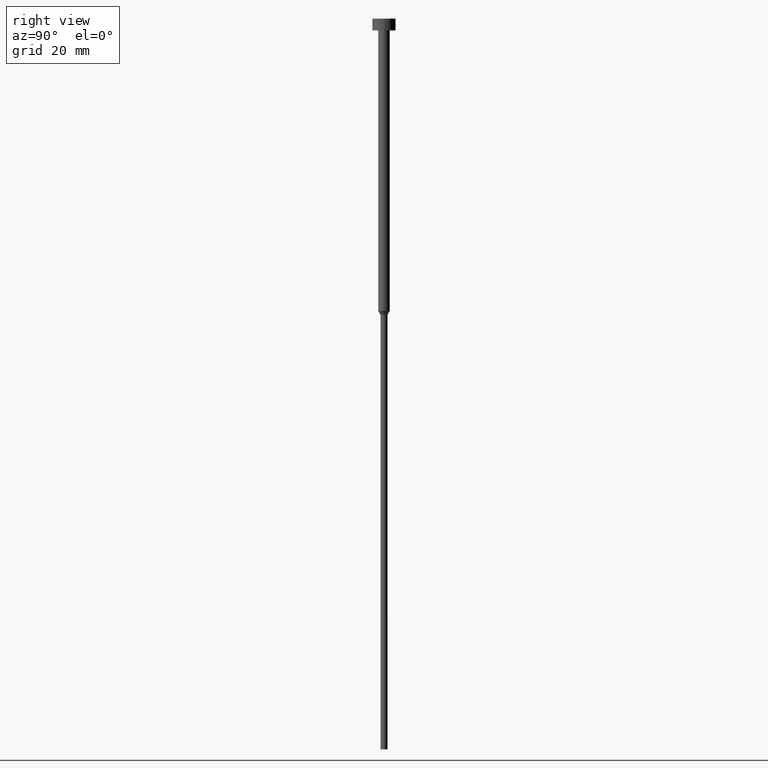
[diagram: clean part render]
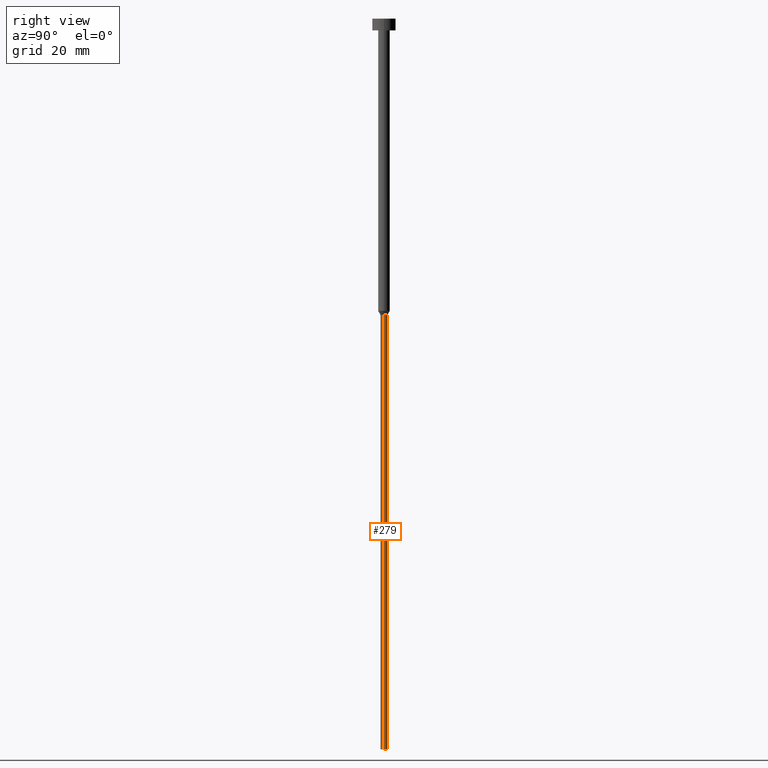
[diagram: same view with one face highlighted and labeled with its STEP entity id]
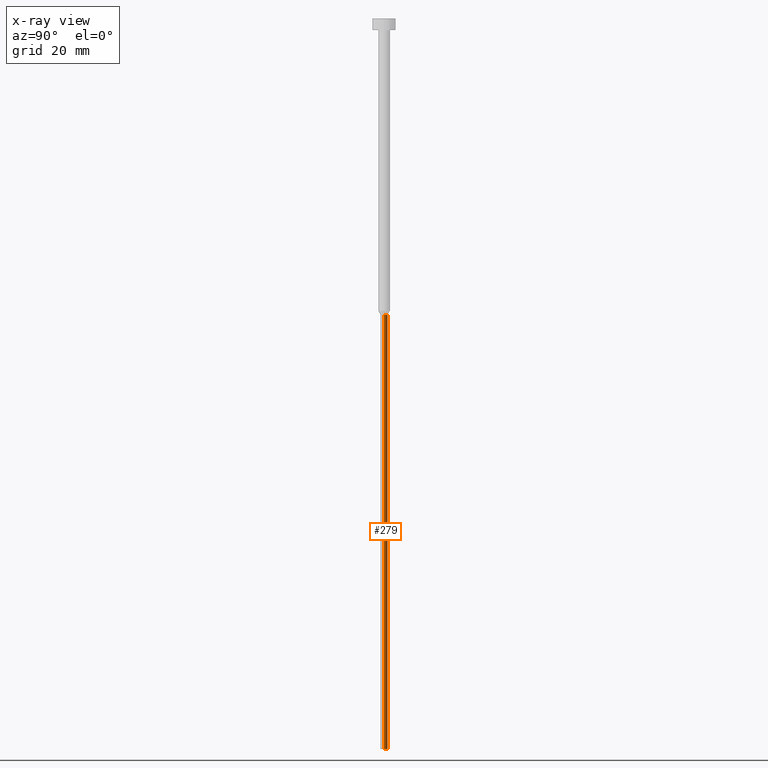
[diagram: x-ray of the same camera — body ghosted, the highlighted face saturated]
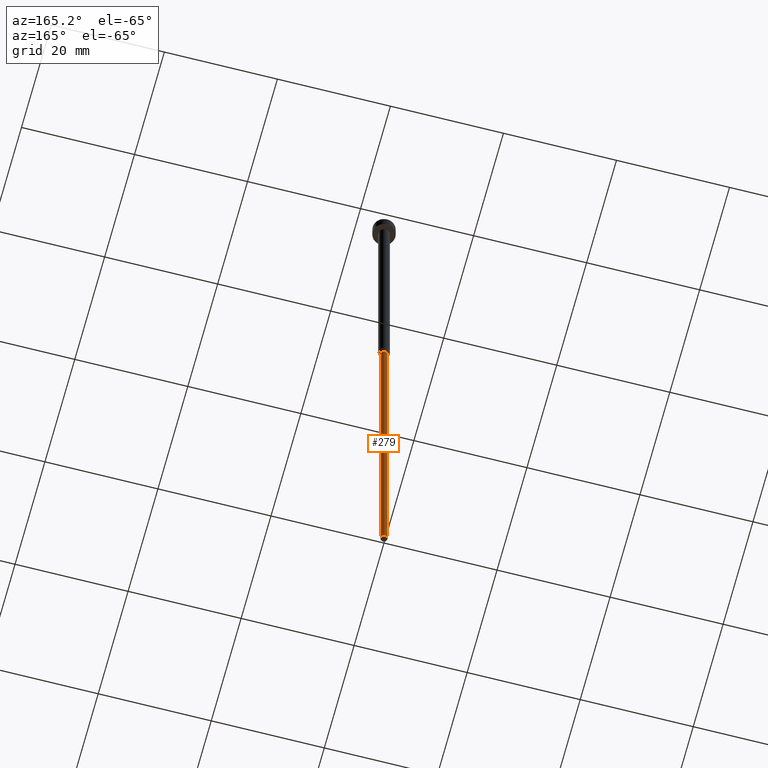
[diagram: same view with one face highlighted and labeled with its STEP entity id]
A machine part, right view. The second image highlights one B-rep face of the part: STEP entity #279.
The next image is the same camera in x-ray: the body ghosted, the highlighted face saturated — about 0% of this face is hidden behind the body in this view.
A second angle (auxiliary view) of the same face is appended — the face is thin or edge-on in the first view.
In plain terms, the highlighted cylindrical surface (edge-blend (fillet) strip) has radius 0.6 mm, axis along (-0, -0, 1).
Its self-contained STEP definition (entity closure, byte-faithful):
#12 = EDGE_LOOP ( 'NONE', ( #86, #160, #252, #32 ) ) ;
#16 = AXIS2_PLACEMENT_3D ( 'NONE', #264, #243, #238 ) ;
#18 = DIRECTION ( 'NONE',  ( 1.000000000000000000, 0.000000000000000000, 0.000000000000000000 ) ) ;
#27 = CARTESIAN_POINT ( 'NONE',  ( -0.5999999999999998668, 7.347880794884117764E-17, 0.000000000000000000 ) ) ;
#29 = VECTOR ( 'NONE', #95, 1000.000000000000000 ) ;
#30 = CYLINDRICAL_SURFACE ( 'NONE', #16, 0.5999999999999998668 ) ;
#31 = VERTEX_POINT ( 'NONE', #196 ) ;
#32 = ORIENTED_EDGE ( 'NONE', *, *, #288, .F. ) ;
#34 = VERTEX_POINT ( 'NONE', #56 ) ;
#48 = CARTESIAN_POINT ( 'NONE',  ( 0.000000000000000000, 0.000000000000000000, -50.69282032302755425 ) ) ;
#52 = EDGE_CURVE ( 'NONE', #276, #34, #241, .T. ) ;
#55 = VERTEX_POINT ( 'NONE', #266 ) ;
#56 = CARTESIAN_POINT ( 'NONE',  ( -0.5999999999999999778, 7.347880794884117764E-17, -50.69282032302755425 ) ) ;
#58 = CARTESIAN_POINT ( 'NONE',  ( -0.5999999999999998668, 7.347880794884117764E-17, -125.0000000000000000 ) ) ;
#86 = ORIENTED_EDGE ( 'NONE', *, *, #227, .T. ) ;
#95 = DIRECTION ( 'NONE',  ( -0.000000000000000000, -0.000000000000000000, 1.000000000000000000 ) ) ;
#140 = CIRCLE ( 'NONE', #334, 0.5999999999999999778 ) ;
#142 = EDGE_CURVE ( 'NONE', #31, #34, #140, .T. ) ;
#149 = FACE_OUTER_BOUND ( 'NONE', #12, .T. ) ;
#160 = ORIENTED_EDGE ( 'NONE', *, *, #52, .T. ) ;
#181 = AXIS2_PLACEMENT_3D ( 'NONE', #197, #291, #259 ) ;
#187 = DIRECTION ( 'NONE',  ( -0.000000000000000000, -0.000000000000000000, 1.000000000000000000 ) ) ;
#196 = CARTESIAN_POINT ( 'NONE',  ( 0.5999999999999999778, 0.000000000000000000, -50.69282032302755425 ) ) ;
#197 = CARTESIAN_POINT ( 'NONE',  ( 0.000000000000000000, 0.000000000000000000, -125.0000000000000000 ) ) ;
#208 = CARTESIAN_POINT ( 'NONE',  ( 0.5999999999999998668, 0.000000000000000000, 0.000000000000000000 ) ) ;
#227 = EDGE_CURVE ( 'NONE', #55, #276, #300, .T. ) ;
#238 = DIRECTION ( 'NONE',  ( 1.000000000000000000, 0.000000000000000000, 0.000000000000000000 ) ) ;
#241 = LINE ( 'NONE', #27, #260 ) ;
#243 = DIRECTION ( 'NONE',  ( -0.000000000000000000, -0.000000000000000000, 1.000000000000000000 ) ) ;
#252 = ORIENTED_EDGE ( 'NONE', *, *, #142, .F. ) ;
#259 = DIRECTION ( 'NONE',  ( 1.000000000000000000, 0.000000000000000000, 0.000000000000000000 ) ) ;
#260 = VECTOR ( 'NONE', #293, 1000.000000000000000 ) ;
#264 = CARTESIAN_POINT ( 'NONE',  ( 0.000000000000000000, 0.000000000000000000, 0.000000000000000000 ) ) ;
#265 = LINE ( 'NONE', #208, #29 ) ;
#266 = CARTESIAN_POINT ( 'NONE',  ( 0.5999999999999998668, 0.000000000000000000, -125.0000000000000000 ) ) ;
#276 = VERTEX_POINT ( 'NONE', #58 ) ;
#279 = ADVANCED_FACE ( 'NONE', ( #149 ), #30, .T. ) ;
#288 = EDGE_CURVE ( 'NONE', #55, #31, #265, .T. ) ;
#291 = DIRECTION ( 'NONE',  ( -0.000000000000000000, -0.000000000000000000, 1.000000000000000000 ) ) ;
#293 = DIRECTION ( 'NONE',  ( -0.000000000000000000, -0.000000000000000000, 1.000000000000000000 ) ) ;
#300 = CIRCLE ( 'NONE', #181, 0.5999999999999998668 ) ;
#334 = AXIS2_PLACEMENT_3D ( 'NONE', #48, #187, #18 ) ;